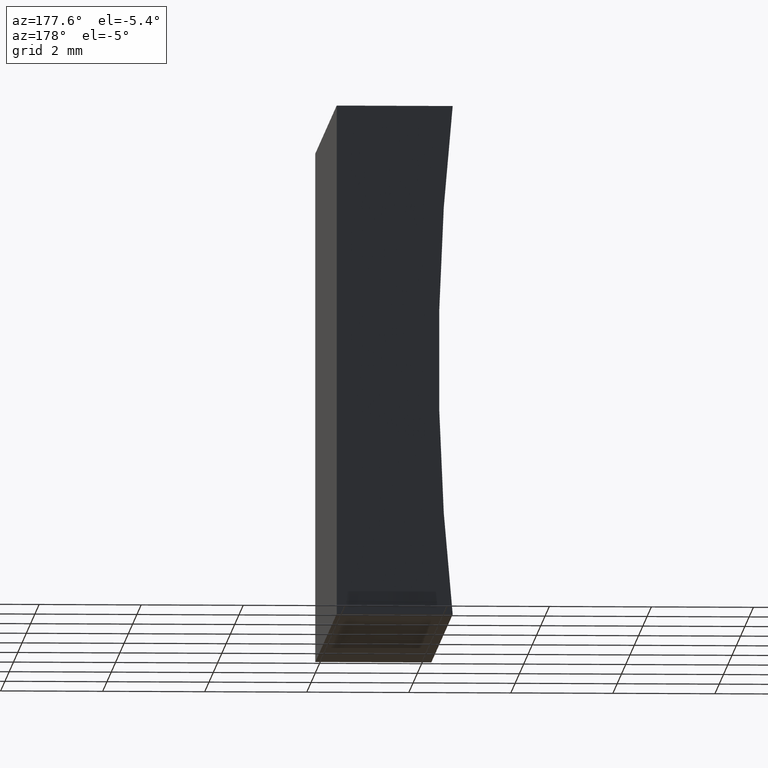
[diagram: clean part render]
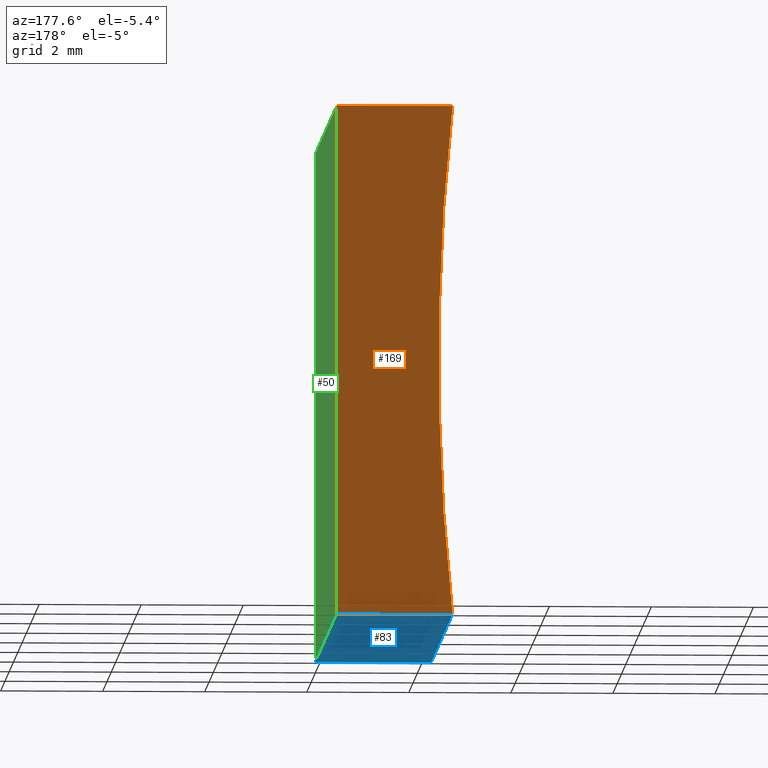
[diagram: same view with three faces highlighted in distinct colors, each labeled with its STEP entity id]
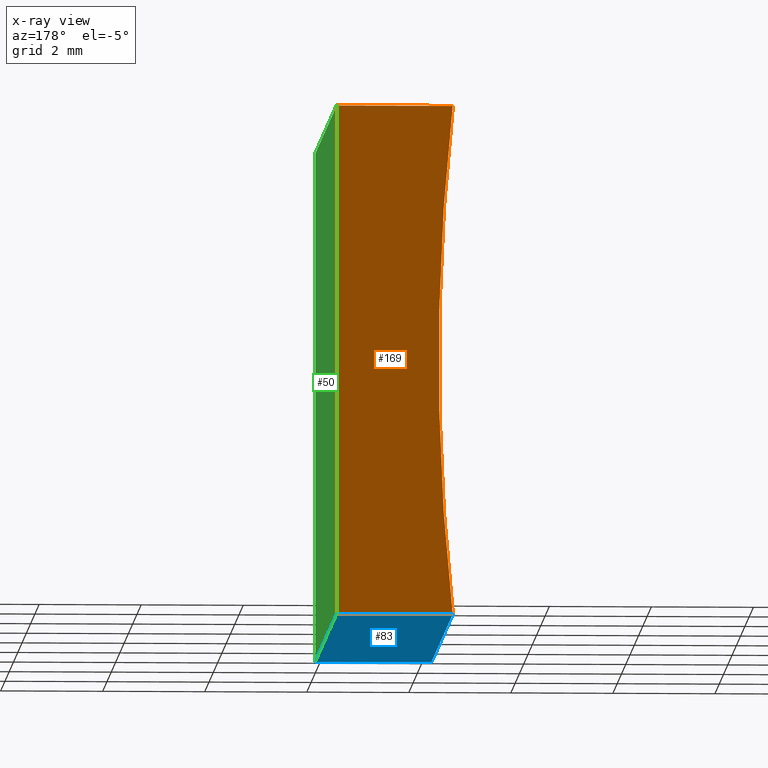
[diagram: x-ray of the same camera — body ghosted, the three highlighted faces saturated]
A machine part, auxiliary view with three faces highlighted in distinct colors.
The next image is the same camera in x-ray (body ghosted, the three faces saturated) — at least one of them is partly hidden behind the body in this view.
Their STEP definitions:

[orange] entity #169 — the highlighted planar face has unit normal (0, 1, 0).
#2 = ORIENTED_EDGE ( 'NONE', *, *, #37, .T. ) ;
#4 = ORIENTED_EDGE ( 'NONE', *, *, #94, .T. ) ;
#13 = DIRECTION ( 'NONE',  ( -1.000000000000000000, 0.0000000000000000000, -7.630378568483681200E-016 ) ) ;
#23 = LINE ( 'NONE', #110, #163 ) ;
#37 = EDGE_CURVE ( 'NONE', #75, #157, #23, .T. ) ;
#38 = CARTESIAN_POINT ( 'NONE',  ( 0.0000000000000000000, 10.00000000000000000, 0.0000000000000000000 ) ) ;
#40 = CIRCLE ( 'NONE', #192, 45.85000000000000100 ) ;
#41 = EDGE_LOOP ( 'NONE', ( #142, #4, #2, #56 ) ) ;
#45 = FACE_OUTER_BOUND ( 'NONE', #41, .T. ) ;
#52 = PLANE ( 'NONE',  #139 ) ;
#53 = DIRECTION ( 'NONE',  ( 0.0000000000000000000, 0.0000000000000000000, 1.000000000000000000 ) ) ;
#56 = ORIENTED_EDGE ( 'NONE', *, *, #203, .T. ) ;
#61 = LINE ( 'NONE', #141, #112 ) ;
#75 = VERTEX_POINT ( 'NONE', #162 ) ;
#81 = DIRECTION ( 'NONE',  ( 0.0000000000000000000, 1.000000000000000000, 0.0000000000000000000 ) ) ;
#94 = EDGE_CURVE ( 'NONE', #125, #75, #40, .T. ) ;
#96 = CARTESIAN_POINT ( 'NONE',  ( -47.85000000000000100, 10.00000000000000000, 5.000000000000004400 ) ) ;
#98 = DIRECTION ( 'NONE',  ( -6.123233995736766000E-017, -0.0000000000000000000, -1.000000000000000000 ) ) ;
#105 = CARTESIAN_POINT ( 'NONE',  ( -47.85000000000000100, 10.00000000000000000, 5.000000000000004400 ) ) ;
#106 = VECTOR ( 'NONE', #13, 1000.000000000000000 ) ;
#107 = DIRECTION ( 'NONE',  ( 1.000000000000000000, -0.0000000000000000000, -7.630378568483683100E-016 ) ) ;
#110 = CARTESIAN_POINT ( 'NONE',  ( 6.123233995736766300E-016, 10.00000000000000000, 10.00000000000000000 ) ) ;
#112 = VECTOR ( 'NONE', #98, 1000.000000000000000 ) ;
#125 = VERTEX_POINT ( 'NONE', #198 ) ;
#139 = AXIS2_PLACEMENT_3D ( 'NONE', #96, #81, #168 ) ;
#141 = CARTESIAN_POINT ( 'NONE',  ( 0.0000000000000000000, 10.00000000000000000, 0.0000000000000000000 ) ) ;
#142 = ORIENTED_EDGE ( 'NONE', *, *, #166, .T. ) ;
#150 = VERTEX_POINT ( 'NONE', #170 ) ;
#157 = VERTEX_POINT ( 'NONE', #202 ) ;
#162 = CARTESIAN_POINT ( 'NONE',  ( -2.273443526304006900, 10.00000000000000000, 10.00000000000000200 ) ) ;
#163 = VECTOR ( 'NONE', #107, 1000.000000000000000 ) ;
#166 = EDGE_CURVE ( 'NONE', #150, #125, #180, .T. ) ;
#168 = DIRECTION ( 'NONE',  ( 0.0000000000000000000, -0.0000000000000000000, 1.000000000000000000 ) ) ;
#169 = ADVANCED_FACE ( 'NONE', ( #45 ), #52, .T. ) ;
#170 = CARTESIAN_POINT ( 'NONE',  ( 0.0000000000000000000, 10.00000000000000000, 0.0000000000000000000 ) ) ;
#180 = LINE ( 'NONE', #38, #106 ) ;
#189 = DIRECTION ( 'NONE',  ( -0.0000000000000000000, -1.000000000000000000, -0.0000000000000000000 ) ) ;
#192 = AXIS2_PLACEMENT_3D ( 'NONE', #105, #189, #53 ) ;
#198 = CARTESIAN_POINT ( 'NONE',  ( -2.273443526304014000, 10.00000000000000000, 8.673617379884035500E-016 ) ) ;
#202 = CARTESIAN_POINT ( 'NONE',  ( 6.123233995736766300E-016, 10.00000000000000000, 10.00000000000000000 ) ) ;
#203 = EDGE_CURVE ( 'NONE', #157, #150, #61, .T. ) ;

[blue] entity #83 — the highlighted planar face has unit normal (-0, 0, 1).
#3 = CARTESIAN_POINT ( 'NONE',  ( -2.273443526304014000, 0.0000000000000000000, 8.673617379884035500E-016 ) ) ;
#5 = VECTOR ( 'NONE', #148, 1000.000000000000000 ) ;
#11 = ORIENTED_EDGE ( 'NONE', *, *, #166, .F. ) ;
#13 = DIRECTION ( 'NONE',  ( -1.000000000000000000, 0.0000000000000000000, -7.630378568483681200E-016 ) ) ;
#16 = ORIENTED_EDGE ( 'NONE', *, *, #25, .F. ) ;
#25 = EDGE_CURVE ( 'NONE', #125, #127, #32, .T. ) ;
#32 = LINE ( 'NONE', #55, #5 ) ;
#35 = CARTESIAN_POINT ( 'NONE',  ( 0.0000000000000000000, 0.0000000000000000000, 0.0000000000000000000 ) ) ;
#38 = CARTESIAN_POINT ( 'NONE',  ( 0.0000000000000000000, 10.00000000000000000, 0.0000000000000000000 ) ) ;
#46 = EDGE_LOOP ( 'NONE', ( #113, #16, #11, #76 ) ) ;
#48 = DIRECTION ( 'NONE',  ( 1.000000000000000000, 0.0000000000000000000, 7.630378568483682100E-016 ) ) ;
#55 = CARTESIAN_POINT ( 'NONE',  ( -2.273443526304014000, 10.00000000000000000, 8.673617379884035500E-016 ) ) ;
#68 = EDGE_CURVE ( 'NONE', #150, #184, #182, .T. ) ;
#76 = ORIENTED_EDGE ( 'NONE', *, *, #68, .T. ) ;
#77 = VECTOR ( 'NONE', #191, 1000.000000000000000 ) ;
#83 = ADVANCED_FACE ( 'NONE', ( #91 ), #135, .F. ) ;
#84 = CARTESIAN_POINT ( 'NONE',  ( 0.0000000000000000000, 0.0000000000000000000, 0.0000000000000000000 ) ) ;
#91 = FACE_OUTER_BOUND ( 'NONE', #46, .T. ) ;
#106 = VECTOR ( 'NONE', #13, 1000.000000000000000 ) ;
#113 = ORIENTED_EDGE ( 'NONE', *, *, #146, .T. ) ;
#115 = VECTOR ( 'NONE', #204, 1000.000000000000000 ) ;
#125 = VERTEX_POINT ( 'NONE', #198 ) ;
#127 = VERTEX_POINT ( 'NONE', #3 ) ;
#133 = CARTESIAN_POINT ( 'NONE',  ( 0.0000000000000000000, 10.00000000000000000, 0.0000000000000000000 ) ) ;
#135 = PLANE ( 'NONE',  #185 ) ;
#146 = EDGE_CURVE ( 'NONE', #184, #127, #174, .T. ) ;
#148 = DIRECTION ( 'NONE',  ( -0.0000000000000000000, -1.000000000000000000, -0.0000000000000000000 ) ) ;
#150 = VERTEX_POINT ( 'NONE', #170 ) ;
#166 = EDGE_CURVE ( 'NONE', #150, #125, #180, .T. ) ;
#170 = CARTESIAN_POINT ( 'NONE',  ( 0.0000000000000000000, 10.00000000000000000, 0.0000000000000000000 ) ) ;
#174 = LINE ( 'NONE', #84, #77 ) ;
#176 = CARTESIAN_POINT ( 'NONE',  ( 0.0000000000000000000, 10.00000000000000000, 0.0000000000000000000 ) ) ;
#180 = LINE ( 'NONE', #38, #106 ) ;
#182 = LINE ( 'NONE', #176, #115 ) ;
#184 = VERTEX_POINT ( 'NONE', #35 ) ;
#185 = AXIS2_PLACEMENT_3D ( 'NONE', #133, #193, #48 ) ;
#191 = DIRECTION ( 'NONE',  ( -1.000000000000000000, 0.0000000000000000000, -7.630378568483681200E-016 ) ) ;
#193 = DIRECTION ( 'NONE',  ( -7.630378568483682100E-016, 0.0000000000000000000, 1.000000000000000000 ) ) ;
#198 = CARTESIAN_POINT ( 'NONE',  ( -2.273443526304014000, 10.00000000000000000, 8.673617379884035500E-016 ) ) ;
#204 = DIRECTION ( 'NONE',  ( -0.0000000000000000000, -1.000000000000000000, -0.0000000000000000000 ) ) ;

[green] entity #50 — the highlighted planar face has unit normal (-1, 0, 0).
#9 = ORIENTED_EDGE ( 'NONE', *, *, #68, .F. ) ;
#15 = DIRECTION ( 'NONE',  ( -0.0000000000000000000, -1.000000000000000000, -0.0000000000000000000 ) ) ;
#19 = VERTEX_POINT ( 'NONE', #63 ) ;
#30 = DIRECTION ( 'NONE',  ( 6.123233995736766000E-017, 0.0000000000000000000, 1.000000000000000000 ) ) ;
#35 = CARTESIAN_POINT ( 'NONE',  ( 0.0000000000000000000, 0.0000000000000000000, 0.0000000000000000000 ) ) ;
#50 = ADVANCED_FACE ( 'NONE', ( #167 ), #99, .F. ) ;
#57 = LINE ( 'NONE', #159, #82 ) ;
#60 = DIRECTION ( 'NONE',  ( -6.123233995736766000E-017, -0.0000000000000000000, -1.000000000000000000 ) ) ;
#61 = LINE ( 'NONE', #141, #112 ) ;
#63 = CARTESIAN_POINT ( 'NONE',  ( 6.123233995736766300E-016, 0.0000000000000000000, 10.00000000000000000 ) ) ;
#64 = ORIENTED_EDGE ( 'NONE', *, *, #197, .T. ) ;
#68 = EDGE_CURVE ( 'NONE', #150, #184, #182, .T. ) ;
#80 = VECTOR ( 'NONE', #15, 1000.000000000000000 ) ;
#82 = VECTOR ( 'NONE', #60, 1000.000000000000000 ) ;
#88 = EDGE_LOOP ( 'NONE', ( #64, #9, #195, #147 ) ) ;
#97 = CARTESIAN_POINT ( 'NONE',  ( 6.123233995736766300E-016, 10.00000000000000000, 10.00000000000000000 ) ) ;
#98 = DIRECTION ( 'NONE',  ( -6.123233995736766000E-017, -0.0000000000000000000, -1.000000000000000000 ) ) ;
#99 = PLANE ( 'NONE',  #121 ) ;
#112 = VECTOR ( 'NONE', #98, 1000.000000000000000 ) ;
#115 = VECTOR ( 'NONE', #204, 1000.000000000000000 ) ;
#121 = AXIS2_PLACEMENT_3D ( 'NONE', #161, #137, #30 ) ;
#128 = LINE ( 'NONE', #97, #80 ) ;
#130 = EDGE_CURVE ( 'NONE', #157, #19, #128, .T. ) ;
#137 = DIRECTION ( 'NONE',  ( -1.000000000000000000, 0.0000000000000000000, 6.123233995736766000E-017 ) ) ;
#141 = CARTESIAN_POINT ( 'NONE',  ( 0.0000000000000000000, 10.00000000000000000, 0.0000000000000000000 ) ) ;
#147 = ORIENTED_EDGE ( 'NONE', *, *, #130, .T. ) ;
#150 = VERTEX_POINT ( 'NONE', #170 ) ;
#157 = VERTEX_POINT ( 'NONE', #202 ) ;
#159 = CARTESIAN_POINT ( 'NONE',  ( 0.0000000000000000000, 0.0000000000000000000, 0.0000000000000000000 ) ) ;
#161 = CARTESIAN_POINT ( 'NONE',  ( 0.0000000000000000000, 10.00000000000000000, 0.0000000000000000000 ) ) ;
#167 = FACE_OUTER_BOUND ( 'NONE', #88, .T. ) ;
#170 = CARTESIAN_POINT ( 'NONE',  ( 0.0000000000000000000, 10.00000000000000000, 0.0000000000000000000 ) ) ;
#176 = CARTESIAN_POINT ( 'NONE',  ( 0.0000000000000000000, 10.00000000000000000, 0.0000000000000000000 ) ) ;
#182 = LINE ( 'NONE', #176, #115 ) ;
#184 = VERTEX_POINT ( 'NONE', #35 ) ;
#195 = ORIENTED_EDGE ( 'NONE', *, *, #203, .F. ) ;
#197 = EDGE_CURVE ( 'NONE', #19, #184, #57, .T. ) ;
#202 = CARTESIAN_POINT ( 'NONE',  ( 6.123233995736766300E-016, 10.00000000000000000, 10.00000000000000000 ) ) ;
#203 = EDGE_CURVE ( 'NONE', #157, #150, #61, .T. ) ;
#204 = DIRECTION ( 'NONE',  ( -0.0000000000000000000, -1.000000000000000000, -0.0000000000000000000 ) ) ;